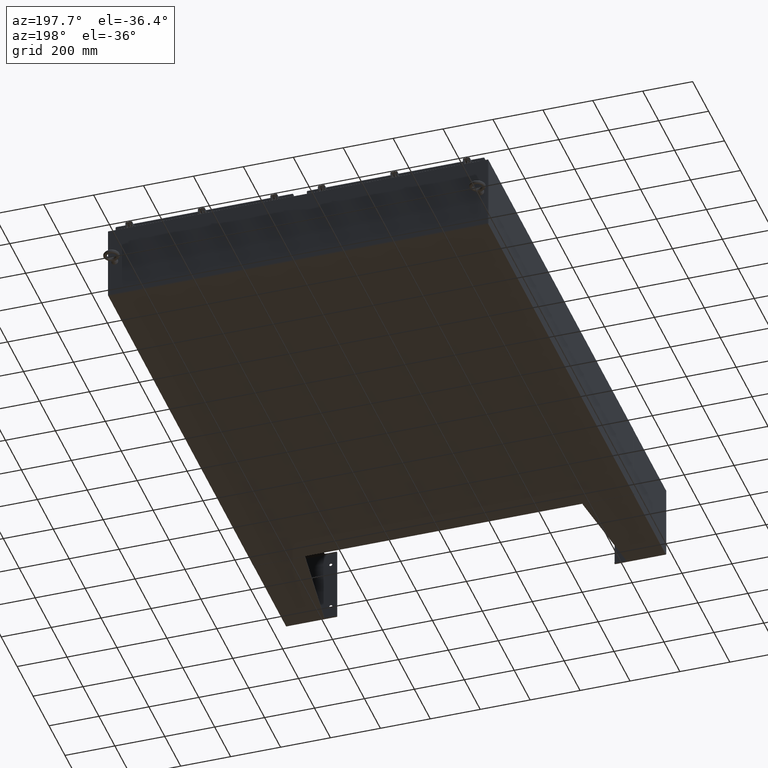
[diagram: clean part render]
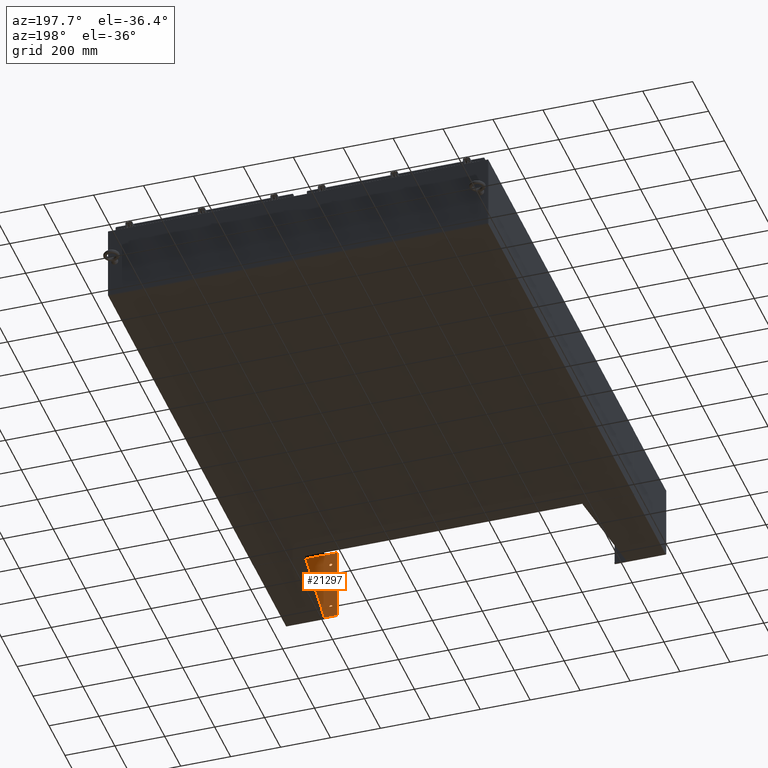
[diagram: same view with one face highlighted and labeled with its STEP entity id]
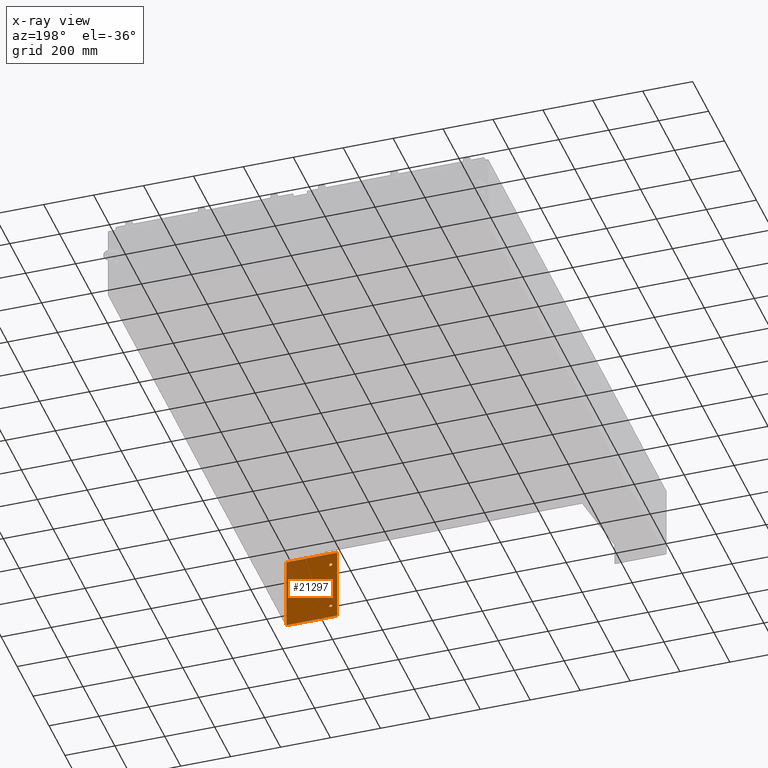
[diagram: x-ray of the same camera — body ghosted, the highlighted face saturated]
A machine part, auxiliary view. The second image highlights one B-rep face of the part: STEP entity #21297.
The next image is the same camera in x-ray: the body ghosted, the highlighted face saturated — about 24% of this face is hidden behind the body in this view.
In plain terms, the highlighted planar face has unit normal (-0, -1, -0).
Its self-contained STEP definition (entity closure, byte-faithful):
#542 = LINE ( 'NONE', #45188, #46407 ) ;
#2017 = AXIS2_PLACEMENT_3D ( 'NONE', #62119, #26446, #68078 ) ;
#2072 = EDGE_CURVE ( 'NONE', #6445, #34074, #13883, .T. ) ;
#2234 = CARTESIAN_POINT ( 'NONE',  ( -3.629000000000006700, -2.999999999999997300, 6.993530863780513800E-014 ) ) ;
#2517 = CIRCLE ( 'NONE', #46071, 0.2499999999999998100 ) ;
#2800 = VECTOR ( 'NONE', #66112, 39.37007874015748100 ) ;
#3205 = FACE_BOUND ( 'NONE', #51602, .T. ) ;
#3312 = CARTESIAN_POINT ( 'NONE',  ( 5.878999999999982700, 4.000000000000000900, 6.993530863780513800E-014 ) ) ;
#5704 = AXIS2_PLACEMENT_3D ( 'NONE', #56450, #56363, #56122 ) ;
#6445 = VERTEX_POINT ( 'NONE', #13133 ) ;
#6539 = CIRCLE ( 'NONE', #33381, 0.2500000000000000000 ) ;
#6580 = VERTEX_POINT ( 'NONE', #3312 ) ;
#8168 = EDGE_CURVE ( 'NONE', #46343, #31727, #39253, .T. ) ;
#9134 = CARTESIAN_POINT ( 'NONE',  ( -5.878999999999997800, -4.000000000000000900, 6.993530863780513800E-014 ) ) ;
#10497 = VERTEX_POINT ( 'NONE', #16058 ) ;
#12716 = DIRECTION ( 'NONE',  ( 0.0000000000000000000, -1.198498701752371100E-031, 1.000000000000000000 ) ) ;
#12875 = CARTESIAN_POINT ( 'NONE',  ( 0.0000000000000000000, 0.0000000000000000000, 0.0000000000000000000 ) ) ;
#13133 = CARTESIAN_POINT ( 'NONE',  ( 4.128999999999987100, -3.000000000000001800, 6.993530863780513800E-014 ) ) ;
#13257 = EDGE_CURVE ( 'NONE', #6580, #39272, #18785, .T. ) ;
#13883 = CIRCLE ( 'NONE', #47330, 0.2499999999999998100 ) ;
#14174 = EDGE_CURVE ( 'NONE', #30930, #10497, #59683, .T. ) ;
#14878 = CARTESIAN_POINT ( 'NONE',  ( -0.2500000000000000000, 3.061616997865962200E-017, 3.669343997205347500E-048 ) ) ;
#15509 = CIRCLE ( 'NONE', #2017, 0.2499999999999998100 ) ;
#16058 = CARTESIAN_POINT ( 'NONE',  ( -4.129000000000005800, -3.000000000000001800, 6.993530863780513800E-014 ) ) ;
#18048 = LINE ( 'NONE', #62618, #60015 ) ;
#18117 = AXIS2_PLACEMENT_3D ( 'NONE', #12875, #54592, #18903 ) ;
#18665 = VERTEX_POINT ( 'NONE', #61922 ) ;
#18785 = LINE ( 'NONE', #64778, #2800 ) ;
#18903 = DIRECTION ( 'NONE',  ( 1.000000000000000000, 9.466330862652141700E-029, 0.0000000000000000000 ) ) ;
#19204 = FACE_BOUND ( 'NONE', #75293, .T. ) ;
#21297 = ADVANCED_FACE ( 'NONE', ( #56517, #19204, #3205, #64855 ), #56787, .F. ) ;
#23389 = VECTOR ( 'NONE', #73051, 39.37007874015748100 ) ;
#25663 = CIRCLE ( 'NONE', #18117, 0.2500000000000000000 ) ;
#25743 = CARTESIAN_POINT ( 'NONE',  ( 3.878999999999987600, -3.000000000000001800, 6.993530863780513800E-014 ) ) ;
#26446 = DIRECTION ( 'NONE',  ( 0.0000000000000000000, -1.198498701752371100E-031, 1.000000000000000000 ) ) ;
#26678 = DIRECTION ( 'NONE',  ( -9.466330862652141700E-029, -1.000000000000000000, 1.198498701752819500E-031 ) ) ;
#27332 = CARTESIAN_POINT ( 'NONE',  ( -5.879000000000000400, 3.999999999999996900, 6.993530863780513800E-014 ) ) ;
#30065 = DIRECTION ( 'NONE',  ( -1.000000000000000000, 0.0000000000000000000, 0.0000000000000000000 ) ) ;
#30150 = DIRECTION ( 'NONE',  ( 0.0000000000000000000, 1.198498701752371100E-031, -1.000000000000000000 ) ) ;
#30241 = ORIENTED_EDGE ( 'NONE', *, *, #55729, .T. ) ;
#30319 = CARTESIAN_POINT ( 'NONE',  ( 3.878999999999987600, -3.000000000000001800, 6.993530863780513800E-014 ) ) ;
#30930 = VERTEX_POINT ( 'NONE', #2234 ) ;
#31019 = VERTEX_POINT ( 'NONE', #14878 ) ;
#31727 = VERTEX_POINT ( 'NONE', #62384 ) ;
#31783 = DIRECTION ( 'NONE',  ( -1.000000000000000000, 0.0000000000000000000, 0.0000000000000000000 ) ) ;
#33381 = AXIS2_PLACEMENT_3D ( 'NONE', #48501, #12716, #54446 ) ;
#34074 = VERTEX_POINT ( 'NONE', #47382 ) ;
#34963 = ORIENTED_EDGE ( 'NONE', *, *, #13257, .T. ) ;
#39253 = LINE ( 'NONE', #74891, #23389 ) ;
#39272 = VERTEX_POINT ( 'NONE', #27332 ) ;
#39410 = ORIENTED_EDGE ( 'NONE', *, *, #58686, .T. ) ;
#44585 = EDGE_CURVE ( 'NONE', #10497, #30930, #15509, .T. ) ;
#45115 = ORIENTED_EDGE ( 'NONE', *, *, #8168, .T. ) ;
#45188 = CARTESIAN_POINT ( 'NONE',  ( 5.879000000000004000, -4.000000000000000900, 6.993530863780513800E-014 ) ) ;
#46071 = AXIS2_PLACEMENT_3D ( 'NONE', #25743, #67380, #31783 ) ;
#46343 = VERTEX_POINT ( 'NONE', #9134 ) ;
#46407 = VECTOR ( 'NONE', #75185, 39.37007874015748100 ) ;
#47330 = AXIS2_PLACEMENT_3D ( 'NONE', #30319, #30150, #30065 ) ;
#47382 = CARTESIAN_POINT ( 'NONE',  ( 3.628999999999988000, -3.000000000000001800, 6.993530863780513800E-014 ) ) ;
#47649 = EDGE_LOOP ( 'NONE', ( #30241, #34963, #39410, #45115 ) ) ;
#48501 = CARTESIAN_POINT ( 'NONE',  ( 0.0000000000000000000, 0.0000000000000000000, 0.0000000000000000000 ) ) ;
#48956 = ORIENTED_EDGE ( 'NONE', *, *, #49727, .F. ) ;
#49727 = EDGE_CURVE ( 'NONE', #18665, #31019, #25663, .T. ) ;
#51602 = EDGE_LOOP ( 'NONE', ( #59143, #62721 ) ) ;
#52477 = ORIENTED_EDGE ( 'NONE', *, *, #69337, .F. ) ;
#54446 = DIRECTION ( 'NONE',  ( 1.000000000000000000, 9.466330862652141700E-029, 0.0000000000000000000 ) ) ;
#54592 = DIRECTION ( 'NONE',  ( 0.0000000000000000000, -1.198498701752371100E-031, 1.000000000000000000 ) ) ;
#55729 = EDGE_CURVE ( 'NONE', #31727, #6580, #542, .T. ) ;
#56122 = DIRECTION ( 'NONE',  ( -1.000000000000000000, -9.466330862652141700E-029, 0.0000000000000000000 ) ) ;
#56363 = DIRECTION ( 'NONE',  ( -1.134538524924699500E-059, 1.198498701752371100E-031, -1.000000000000000000 ) ) ;
#56450 = CARTESIAN_POINT ( 'NONE',  ( 5.878999999999982700, 4.000000000000000900, 6.993530863780513800E-014 ) ) ;
#56517 = FACE_OUTER_BOUND ( 'NONE', #47649, .T. ) ;
#56787 = PLANE ( 'NONE',  #5704 ) ;
#58686 = EDGE_CURVE ( 'NONE', #39272, #46343, #18048, .T. ) ;
#58887 = AXIS2_PLACEMENT_3D ( 'NONE', #66556, #66314, #66052 ) ;
#59046 = EDGE_LOOP ( 'NONE', ( #66373, #73736 ) ) ;
#59143 = ORIENTED_EDGE ( 'NONE', *, *, #14174, .F. ) ;
#59683 = CIRCLE ( 'NONE', #58887, 0.2499999999999998100 ) ;
#60015 = VECTOR ( 'NONE', #26678, 39.37007874015748100 ) ;
#61922 = CARTESIAN_POINT ( 'NONE',  ( 0.2500000000000000000, 2.366582715663035400E-029, 0.0000000000000000000 ) ) ;
#62119 = CARTESIAN_POINT ( 'NONE',  ( -3.879000000000006200, -2.999999999999997300, 6.993530863780513800E-014 ) ) ;
#62384 = CARTESIAN_POINT ( 'NONE',  ( 5.879000000000004000, -4.000000000000000900, 6.993530863780513800E-014 ) ) ;
#62618 = CARTESIAN_POINT ( 'NONE',  ( -5.878999999999997800, -4.000000000000000900, 6.993530863780513800E-014 ) ) ;
#62721 = ORIENTED_EDGE ( 'NONE', *, *, #44585, .F. ) ;
#63584 = EDGE_CURVE ( 'NONE', #34074, #6445, #2517, .T. ) ;
#64778 = CARTESIAN_POINT ( 'NONE',  ( -5.879000000000000400, 3.999999999999996900, 6.993530863780513800E-014 ) ) ;
#64855 = FACE_BOUND ( 'NONE', #59046, .T. ) ;
#66052 = DIRECTION ( 'NONE',  ( 1.000000000000000000, 0.0000000000000000000, 0.0000000000000000000 ) ) ;
#66112 = DIRECTION ( 'NONE',  ( -1.000000000000000000, -9.466330862652141700E-029, 0.0000000000000000000 ) ) ;
#66314 = DIRECTION ( 'NONE',  ( 0.0000000000000000000, -1.198498701752371100E-031, 1.000000000000000000 ) ) ;
#66373 = ORIENTED_EDGE ( 'NONE', *, *, #2072, .T. ) ;
#66556 = CARTESIAN_POINT ( 'NONE',  ( -3.879000000000006200, -2.999999999999997300, 6.993530863780513800E-014 ) ) ;
#67380 = DIRECTION ( 'NONE',  ( 0.0000000000000000000, 1.198498701752371100E-031, -1.000000000000000000 ) ) ;
#68078 = DIRECTION ( 'NONE',  ( 1.000000000000000000, 0.0000000000000000000, 0.0000000000000000000 ) ) ;
#69337 = EDGE_CURVE ( 'NONE', #31019, #18665, #6539, .T. ) ;
#73051 = DIRECTION ( 'NONE',  ( 1.000000000000000000, 9.466330862652141700E-029, 0.0000000000000000000 ) ) ;
#73736 = ORIENTED_EDGE ( 'NONE', *, *, #63584, .T. ) ;
#74891 = CARTESIAN_POINT ( 'NONE',  ( -5.878999999999997800, -4.000000000000000900, 6.993530863780513800E-014 ) ) ;
#75185 = DIRECTION ( 'NONE',  ( 9.466330862652141700E-029, 1.000000000000000000, -1.198498701752819500E-031 ) ) ;
#75293 = EDGE_LOOP ( 'NONE', ( #48956, #52477 ) ) ;